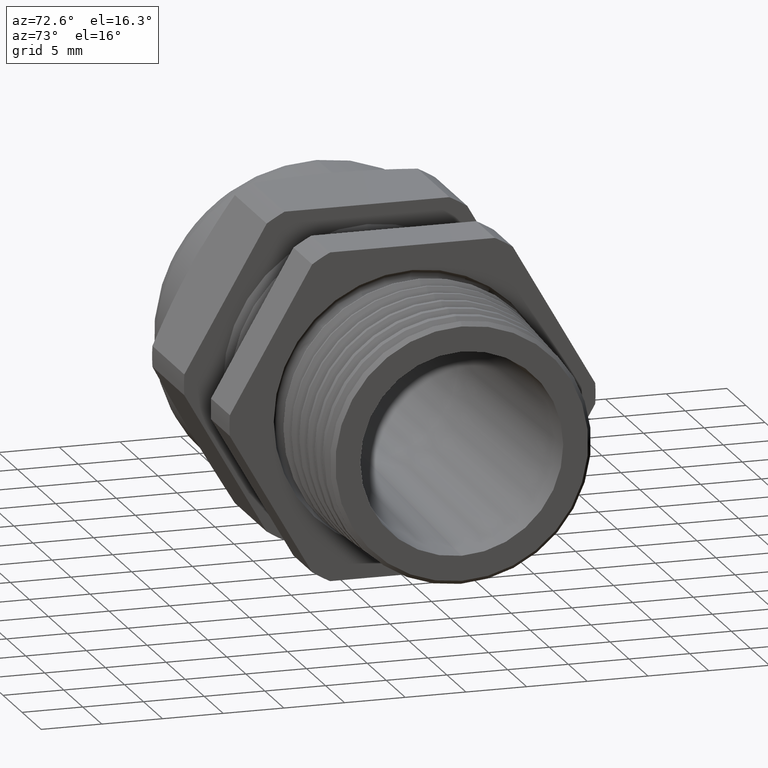
[diagram: clean part render]
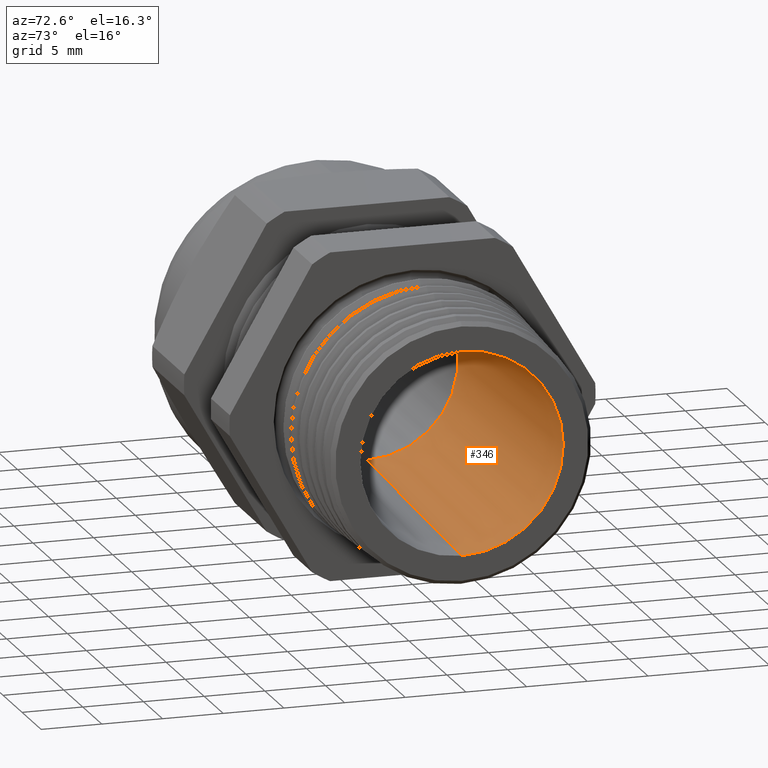
[diagram: same view with one face highlighted and labeled with its STEP entity id]
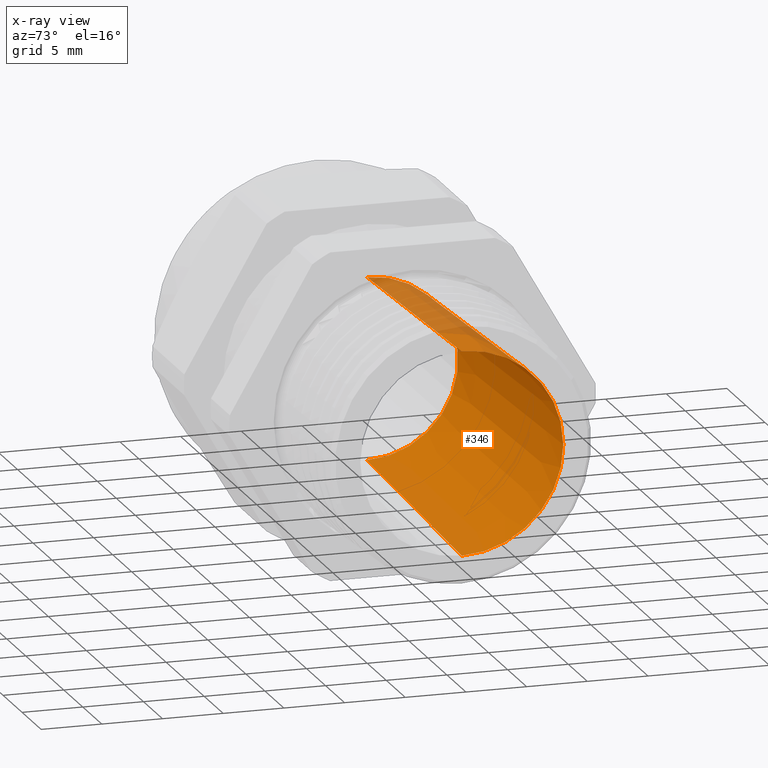
[diagram: x-ray of the same camera — body ghosted, the highlighted face saturated]
A machine part, auxiliary view. The second image highlights one B-rep face of the part: STEP entity #346.
The next image is the same camera in x-ray: the body ghosted, the highlighted face saturated — about 8% of this face is hidden behind the body in this view.
In plain terms, the highlighted conical surface has half-angle 2 deg.
Its self-contained STEP definition (entity closure, byte-faithful):
#343 = EDGE_CURVE ( 'NONE', #1064, #1063, #1735, .T. ) ;
#346 = ADVANCED_FACE ( 'NONE', ( #1731 ), #1730, .F. ) ;
#347 = EDGE_LOOP ( 'NONE', ( #348, #2890, #397, #398 ) ) ;
#348 = ORIENTED_EDGE ( 'NONE', *, *, #1060, .F. ) ;
#397 = ORIENTED_EDGE ( 'NONE', *, *, #1071, .T. ) ;
#398 = ORIENTED_EDGE ( 'NONE', *, *, #399, .F. ) ;
#399 = EDGE_CURVE ( 'NONE', #1066, #1052, #1790, .T. ) ;
#1052 = VERTEX_POINT ( 'NONE', #2939 ) ;
#1060 = EDGE_CURVE ( 'NONE', #1064, #1066, #2995, .T. ) ;
#1063 = VERTEX_POINT ( 'NONE', #2991 ) ;
#1064 = VERTEX_POINT ( 'NONE', #2990 ) ;
#1066 = VERTEX_POINT ( 'NONE', #2989 ) ;
#1071 = EDGE_CURVE ( 'NONE', #1063, #1052, #2984, .T. ) ;
#1726 = DIRECTION ( 'NONE',  ( 1.000000000000000000, 0.0000000000000000000, 0.0000000000000000000 ) ) ;
#1727 = CARTESIAN_POINT ( 'NONE',  ( -0.4708333333333333300, 0.0000000000000000000, 0.0000000000000000000 ) ) ;
#1728 = AXIS2_PLACEMENT_3D ( 'NONE', #1727, #1726, #1788 ) ;
#1730 = CONICAL_SURFACE ( 'NONE', #1728, 0.2949999999999999800, 0.03490658503988733300 ) ;
#1731 = FACE_OUTER_BOUND ( 'NONE', #347, .T. ) ;
#1732 = DIRECTION ( 'NONE',  ( 0.0000000000000000000, 0.0000000000000000000, 1.000000000000000000 ) ) ;
#1733 = DIRECTION ( 'NONE',  ( -1.000000000000000000, 0.0000000000000000000, 0.0000000000000000000 ) ) ;
#1734 = AXIS2_PLACEMENT_3D ( 'NONE', #1741, #1733, #1732 ) ;
#1735 = CIRCLE ( 'NONE', #1734, 0.2949999999999999800 ) ;
#1741 = CARTESIAN_POINT ( 'NONE',  ( -0.4708333333333333300, 0.0000000000000000000, 0.0000000000000000000 ) ) ;
#1788 = DIRECTION ( 'NONE',  ( 0.0000000000000000000, 0.0000000000000000000, -1.000000000000000000 ) ) ;
#1789 = CARTESIAN_POINT ( 'NONE',  ( 0.5100000000000000100, 0.0000000000000000000, 0.0000000000000000000 ) ) ;
#1790 = CIRCLE ( 'NONE', #1856, 0.3292514547431566500 ) ;
#1854 = DIRECTION ( 'NONE',  ( 0.0000000000000000000, 0.0000000000000000000, 1.000000000000000000 ) ) ;
#1855 = DIRECTION ( 'NONE',  ( -1.000000000000000000, 0.0000000000000000000, 0.0000000000000000000 ) ) ;
#1856 = AXIS2_PLACEMENT_3D ( 'NONE', #1789, #1855, #1854 ) ;
#2890 = ORIENTED_EDGE ( 'NONE', *, *, #343, .T. ) ;
#2939 = CARTESIAN_POINT ( 'NONE',  ( 0.5100000000000000100, 0.0000000000000000000, -0.3292514547431566500 ) ) ;
#2981 = DIRECTION ( 'NONE',  ( 0.9993908270190957600, 0.0000000000000000000, -0.03489949670250171200 ) ) ;
#2982 = VECTOR ( 'NONE', #2981, 39.37007874015748900 ) ;
#2983 = CARTESIAN_POINT ( 'NONE',  ( -0.4708333333333333300, 0.0000000000000000000, -0.2949999999999999800 ) ) ;
#2984 = LINE ( 'NONE', #2983, #2982 ) ;
#2989 = CARTESIAN_POINT ( 'NONE',  ( 0.5100000000000000100, 4.032167401658163500E-017, 0.3292514547431566500 ) ) ;
#2990 = CARTESIAN_POINT ( 'NONE',  ( -0.4708333333333333300, 0.0000000000000000000, 0.2949999999999999800 ) ) ;
#2991 = CARTESIAN_POINT ( 'NONE',  ( -0.4708333333333333300, 3.612708057484692000E-017, -0.2949999999999999800 ) ) ;
#2992 = DIRECTION ( 'NONE',  ( 0.9993908270190957600, 4.273955692857232700E-018, 0.03489949670250171200 ) ) ;
#2993 = VECTOR ( 'NONE', #2992, 39.37007874015748900 ) ;
#2994 = CARTESIAN_POINT ( 'NONE',  ( -0.4708333333333333300, 3.612708057484692000E-017, 0.2949999999999999800 ) ) ;
#2995 = LINE ( 'NONE', #2994, #2993 ) ;